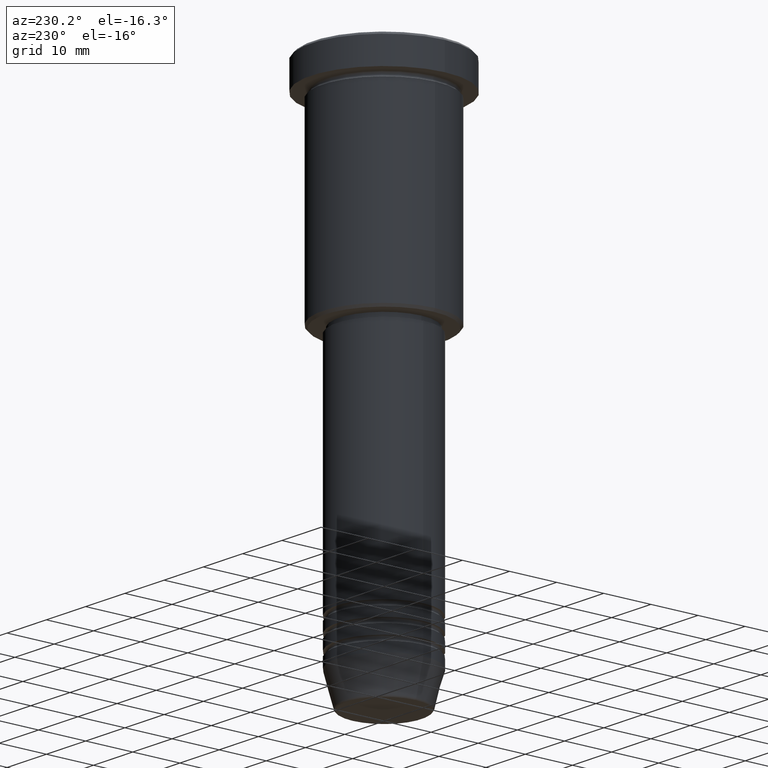
[diagram: clean part render]
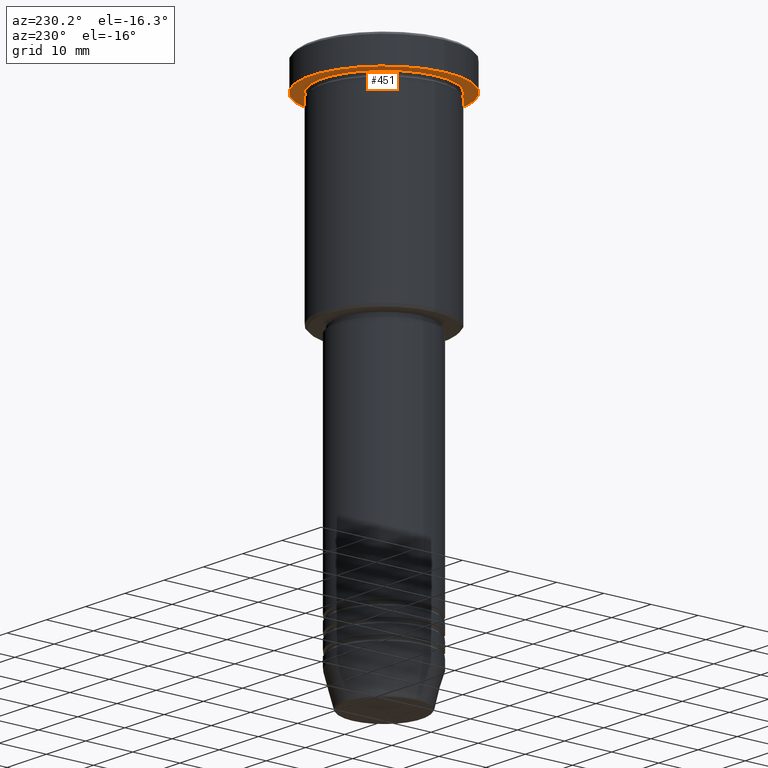
[diagram: same view with one face highlighted and labeled with its STEP entity id]
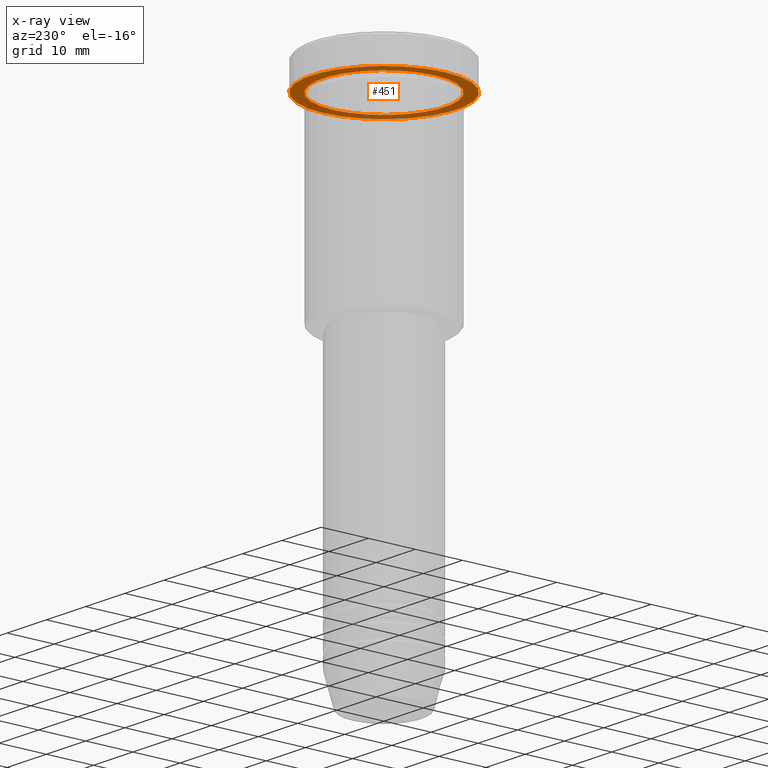
[diagram: x-ray of the same camera — body ghosted, the highlighted face saturated]
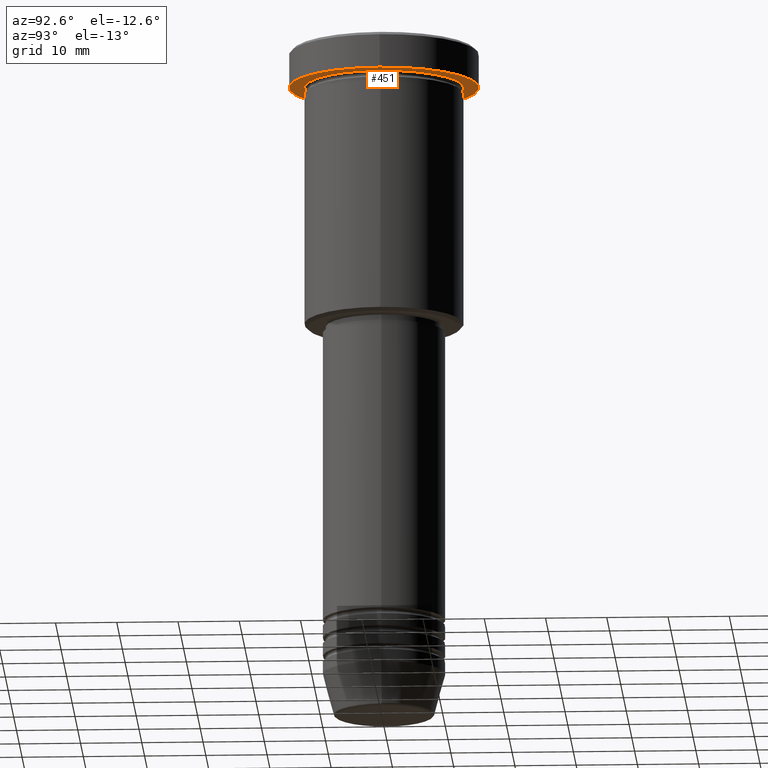
[diagram: same view with one face highlighted and labeled with its STEP entity id]
A machine part, auxiliary view. The second image highlights one B-rep face of the part: STEP entity #451.
The next image is the same camera in x-ray: the body ghosted, the highlighted face saturated — about 33% of this face is hidden behind the body in this view.
A second angle (auxiliary view) of the same face is appended — the face is thin or edge-on in the first view.
In plain terms, the highlighted planar face has unit normal (0, 0, -1).
Its self-contained STEP definition (entity closure, byte-faithful):
#5 = DIRECTION ( 'NONE',  ( 1.000000000000000000, 0.000000000000000000, 0.000000000000000000 ) ) ;
#36 = DIRECTION ( 'NONE',  ( -0.000000000000000000, -0.000000000000000000, 1.000000000000000000 ) ) ;
#37 = FACE_OUTER_BOUND ( 'NONE', #792, .T. ) ;
#46 = VERTEX_POINT ( 'NONE', #760 ) ;
#125 = DIRECTION ( 'NONE',  ( 0.000000000000000000, 0.000000000000000000, -1.000000000000000000 ) ) ;
#139 = CARTESIAN_POINT ( 'NONE',  ( 0.000000000000000000, 15.50000000000000000, -5.999999999999995559 ) ) ;
#176 = CARTESIAN_POINT ( 'NONE',  ( -13.00000000000000000, 0.000000000000000000, -5.999999999999994671 ) ) ;
#208 = DIRECTION ( 'NONE',  ( -1.000000000000000000, 0.000000000000000000, -0.000000000000000000 ) ) ;
#269 = EDGE_LOOP ( 'NONE', ( #307, #1149 ) ) ;
#307 = ORIENTED_EDGE ( 'NONE', *, *, #873, .T. ) ;
#360 = EDGE_CURVE ( 'NONE', #786, #46, #551, .T. ) ;
#367 = CARTESIAN_POINT ( 'NONE',  ( 0.000000000000000000, 0.000000000000000000, -5.999999999999995559 ) ) ;
#374 = CIRCLE ( 'NONE', #779, 13.00000000000000000 ) ;
#381 = DIRECTION ( 'NONE',  ( 1.000000000000000000, 0.000000000000000000, 0.000000000000000000 ) ) ;
#397 = DIRECTION ( 'NONE',  ( -0.000000000000000000, -0.000000000000000000, 1.000000000000000000 ) ) ;
#413 = CARTESIAN_POINT ( 'NONE',  ( 13.00000000000000000, 1.592040838891559095E-15, -5.999999999999994671 ) ) ;
#426 = DIRECTION ( 'NONE',  ( -1.000000000000000000, 0.000000000000000000, 0.000000000000000000 ) ) ;
#442 = ORIENTED_EDGE ( 'NONE', *, *, #360, .F. ) ;
#443 = CARTESIAN_POINT ( 'NONE',  ( 0.000000000000000000, 0.000000000000000000, -5.999999999999995559 ) ) ;
#451 = ADVANCED_FACE ( 'NONE', ( #497, #37 ), #1126, .T. ) ;
#497 = FACE_BOUND ( 'NONE', #269, .T. ) ;
#508 = VERTEX_POINT ( 'NONE', #413 ) ;
#530 = DIRECTION ( 'NONE',  ( -0.000000000000000000, -0.000000000000000000, 1.000000000000000000 ) ) ;
#551 = CIRCLE ( 'NONE', #679, 15.50000000000000000 ) ;
#599 = ORIENTED_EDGE ( 'NONE', *, *, #832, .F. ) ;
#616 = EDGE_CURVE ( 'NONE', #508, #974, #631, .T. ) ;
#631 = CIRCLE ( 'NONE', #935, 13.00000000000000000 ) ;
#636 = CARTESIAN_POINT ( 'NONE',  ( -15.50000000000000000, 1.898202538678397557E-15, -5.999999999999995559 ) ) ;
#679 = AXIS2_PLACEMENT_3D ( 'NONE', #1096, #738, #5 ) ;
#738 = DIRECTION ( 'NONE',  ( -0.000000000000000000, -0.000000000000000000, 1.000000000000000000 ) ) ;
#760 = CARTESIAN_POINT ( 'NONE',  ( 15.50000000000000000, 0.000000000000000000, -5.999999999999995559 ) ) ;
#779 = AXIS2_PLACEMENT_3D ( 'NONE', #1115, #36, #939 ) ;
#786 = VERTEX_POINT ( 'NONE', #636 ) ;
#792 = EDGE_LOOP ( 'NONE', ( #599, #442 ) ) ;
#815 = AXIS2_PLACEMENT_3D ( 'NONE', #139, #125, #208 ) ;
#832 = EDGE_CURVE ( 'NONE', #46, #786, #1085, .T. ) ;
#873 = EDGE_CURVE ( 'NONE', #974, #508, #374, .T. ) ;
#935 = AXIS2_PLACEMENT_3D ( 'NONE', #443, #530, #426 ) ;
#939 = DIRECTION ( 'NONE',  ( -1.000000000000000000, 0.000000000000000000, 0.000000000000000000 ) ) ;
#974 = VERTEX_POINT ( 'NONE', #176 ) ;
#1085 = CIRCLE ( 'NONE', #1141, 15.50000000000000000 ) ;
#1096 = CARTESIAN_POINT ( 'NONE',  ( 0.000000000000000000, 0.000000000000000000, -5.999999999999995559 ) ) ;
#1115 = CARTESIAN_POINT ( 'NONE',  ( 0.000000000000000000, 0.000000000000000000, -5.999999999999995559 ) ) ;
#1126 = PLANE ( 'NONE',  #815 ) ;
#1141 = AXIS2_PLACEMENT_3D ( 'NONE', #367, #397, #381 ) ;
#1149 = ORIENTED_EDGE ( 'NONE', *, *, #616, .T. ) ;